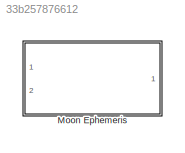
MODEL slx_33b257876612
KIND library
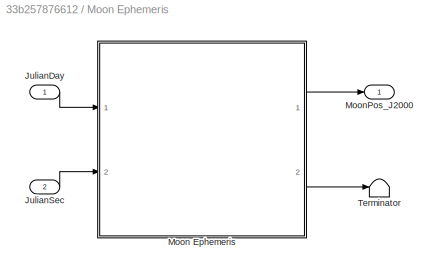
BLOCK [SubSystem] Moon Ephemeris
  Ports = [2, 1]
  RequestExecContextInheritance = off
BLOCK [Inport] Moon Ephemeris/JulianDay
  IconDisplay = Port number
BLOCK [Inport] Moon Ephemeris/JulianSec
  IconDisplay = Port number
  Port = 2
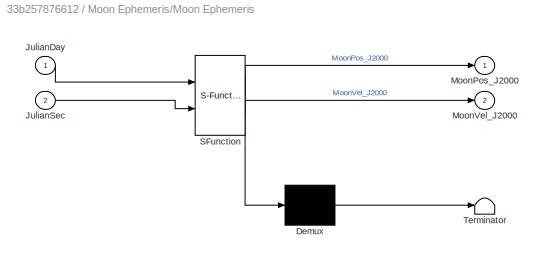
BLOCK [SubSystem] Moon Ephemeris/Moon Ephemeris
  ErrorFcn = Stateflow.Translate.translate
  PermitHierarchicalResolution = ExplicitOnly
  Ports = [2, 2]
  RequestExecContextInheritance = off
  SFBlockType = MATLAB Function
  TreatAsAtomicUnit = on
BLOCK [Demux] Moon Ephemeris/Moon Ephemeris/ Demux 
  Outputs = 1
  Ports = [1, 1]
BLOCK [S-Function] Moon Ephemeris/Moon Ephemeris/ SFunction 
  EnableBusSupport = off
  FunctionName = sf_sfun
  PortCounts = [2 3]
  Ports = [2, 3]
  Tag = Stateflow S-Function MoonEphemeris_MathWorks 2
BLOCK [Terminator] Moon Ephemeris/Moon Ephemeris/ Terminator 
BLOCK [Inport] Moon Ephemeris/Moon Ephemeris/JulianDay
  IconDisplay = Port number
BLOCK [Inport] Moon Ephemeris/Moon Ephemeris/JulianSec
  IconDisplay = Port number
  Port = 2
BLOCK [Outport] Moon Ephemeris/Moon Ephemeris/MoonPos_J2000
  IconDisplay = Port number
BLOCK [Outport] Moon Ephemeris/Moon Ephemeris/MoonVel_J2000
  IconDisplay = Port number
  Port = 2
BLOCK [Outport] Moon Ephemeris/MoonPos_J2000
  IconDisplay = Port number
BLOCK [Terminator] Moon Ephemeris/Terminator
LINE Moon Ephemeris/JulianDay:1 -> Moon Ephemeris/Moon Ephemeris:1
LINE Moon Ephemeris/JulianSec:1 -> Moon Ephemeris/Moon Ephemeris:2
LINE Moon Ephemeris/Moon Ephemeris:1 -> Moon Ephemeris/MoonPos_J2000:1
LINE Moon Ephemeris/Moon Ephemeris:2 -> Moon Ephemeris/Terminator:1
CHART Moon Ephemeris/Moon Ephemeris states=1 transitions=1
  STATE_LABEL 'eML_blk_kernel()'
  STATE_LABEL 'SCRIPT:\n%**************************************************************************\n%\n%  A simple analytical lunar ephemeris model. Returns Lunar cartesian\n%  coordinates (mean equator and equinox of epoch J2000).\n%\n% Input:\n%  mjd        Modified Julian date\n%\n% Outputs:\n%  r_moon    Moon position (m)\n%  v_moon    Moon velocity (m/s)\n%\n%  Reference:\n%    "An alternative lunar ephemeris model for ...<+2634ch>'
